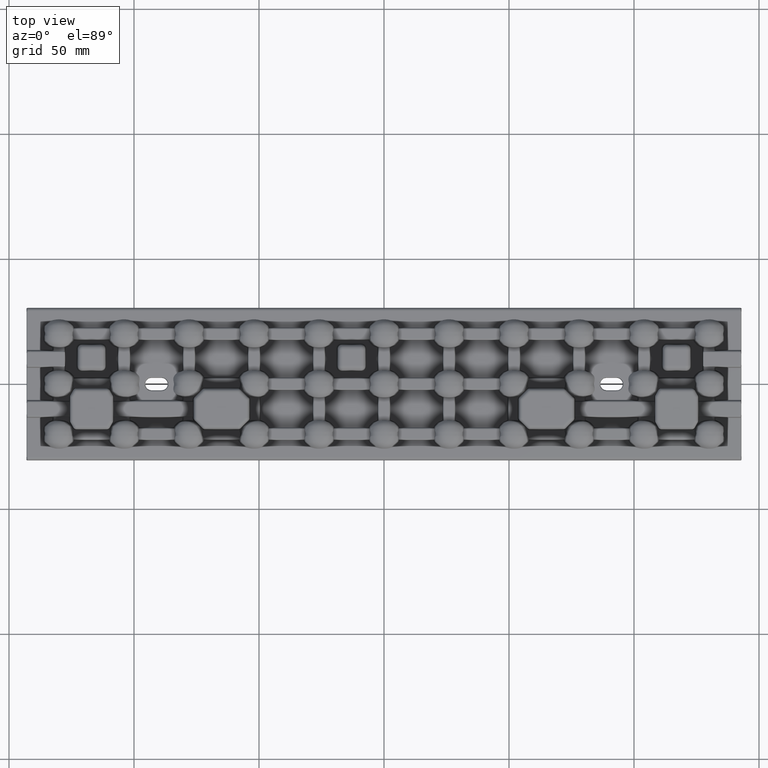
[diagram: clean part render]
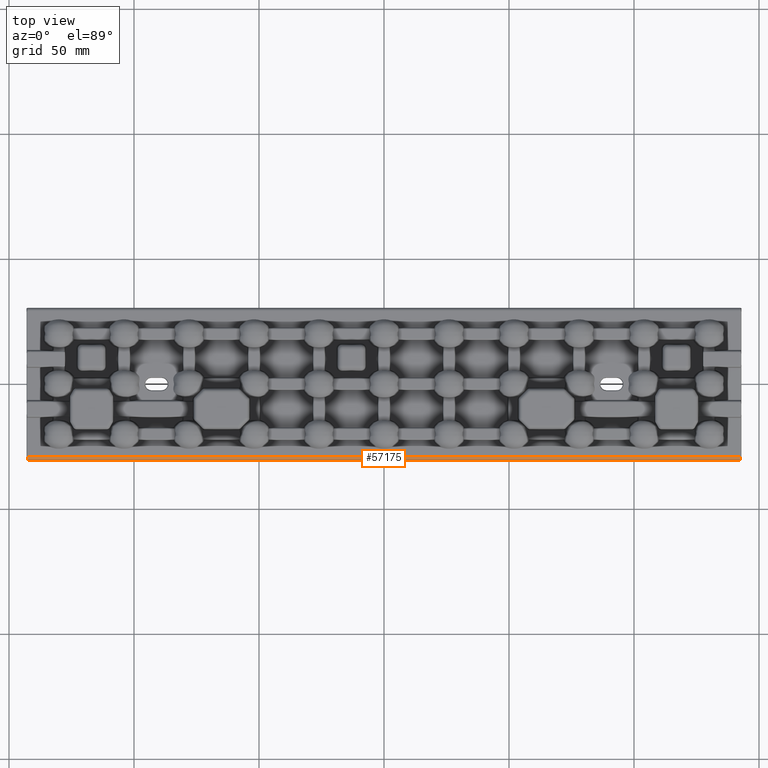
[diagram: same view with one face highlighted and labeled with its STEP entity id]
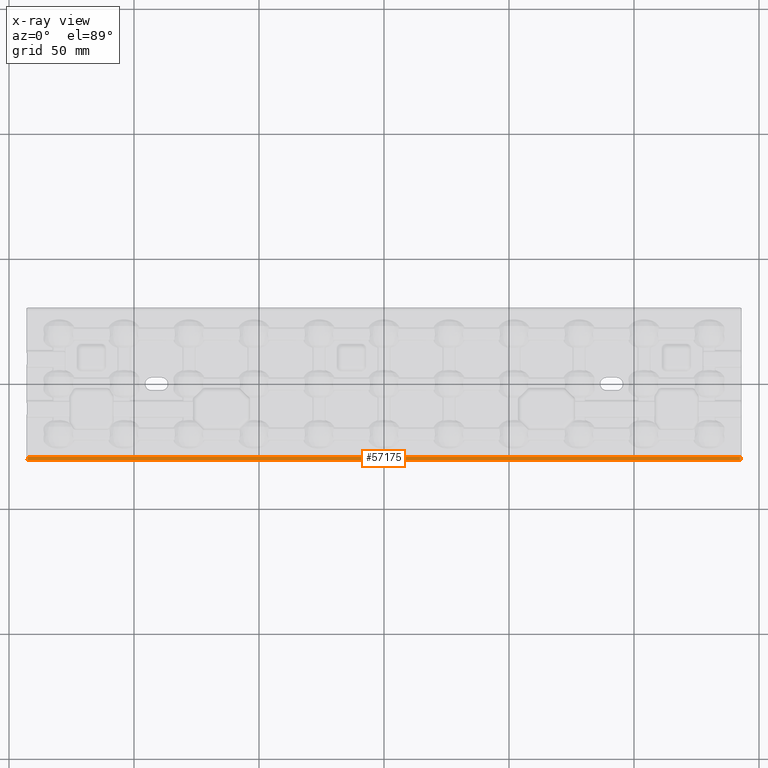
[diagram: x-ray of the same camera — body ghosted, the highlighted face saturated]
A machine part, top view. The second image highlights one B-rep face of the part: STEP entity #57175.
The next image is the same camera in x-ray: the body ghosted, the highlighted face saturated — about 0% of this face is hidden behind the body in this view.
In plain terms, the highlighted cylindrical surface (edge-blend (fillet) strip) has radius 1.25 mm, axis along (-1, 0, 0).
Its self-contained STEP definition (entity closure, byte-faithful):
#247 = CARTESIAN_POINT ( 'NONE',  ( 0.0000000000000000000, -29.17765049216839300, 2.000000000000000000 ) ) ;
#3083 = EDGE_CURVE ( 'NONE', #15239, #69285, #68704, .T. ) ;
#12654 = CARTESIAN_POINT ( 'NONE',  ( -142.4984859507544300, -29.17765049216839300, 2.000000000000000000 ) ) ;
#14475 = CARTESIAN_POINT ( 'NONE',  ( -142.5271326951346400, -30.42688902594225900, 0.7936243708781265400 ) ) ;
#14731 = CARTESIAN_POINT ( 'NONE',  ( -142.4984859507544300, -29.17765049216839300, 2.000000000000000000 ) ) ;
#15239 = VERTEX_POINT ( 'NONE', #12654 ) ;
#15262 = CARTESIAN_POINT ( 'NONE',  ( -142.4984859507544300, -29.88977599060007200, 2.000000000000000000 ) ) ;
#15605 = CARTESIAN_POINT ( 'NONE',  ( -142.5102327765253000, -30.40203620445798200, 1.505316061697149000 ) ) ;
#16471 =( BOUNDED_CURVE ( )  B_SPLINE_CURVE ( 3, ( #66979, #54297, #73108, #36955 ),
 .UNSPECIFIED., .F., .F. ) 
 B_SPLINE_CURVE_WITH_KNOTS ( ( 4, 4 ),
 ( 4.747295565424576800, 6.283185307179586200 ),
 .UNSPECIFIED. ) 
 CURVE ( )  GEOMETRIC_REPRESENTATION_ITEM ( )  RATIONAL_B_SPLINE_CURVE ( ( 1.000000000000000000, 0.8128932002257675000, 0.8128932002257675000, 1.000000000000000000 ) ) 
 REPRESENTATION_ITEM ( '' )  );
#16644 = FACE_OUTER_BOUND ( 'NONE', #35630, .T. ) ;
#18693 = ORIENTED_EDGE ( 'NONE', *, *, #50380, .T. ) ;
#25605 = CARTESIAN_POINT ( 'NONE',  ( 0.0000000000000000000, -29.17765049216839300, 0.7500000000000002200 ) ) ;
#30538 = VECTOR ( 'NONE', #41864, 1000.000000000000000 ) ;
#35630 = EDGE_LOOP ( 'NONE', ( #51542, #18693, #56258, #57235 ) ) ;
#36955 = CARTESIAN_POINT ( 'NONE',  ( 142.4984859507544300, -29.17765049216839300, 2.000000000000000000 ) ) ;
#37400 = DIRECTION ( 'NONE',  ( -1.000000000000000000, 0.0000000000000000000, 0.0000000000000000000 ) ) ;
#41864 = DIRECTION ( 'NONE',  ( -1.000000000000000000, 0.0000000000000000000, 0.0000000000000000000 ) ) ;
#42712 = CARTESIAN_POINT ( 'NONE',  ( 142.5271326951346400, -30.42688902594225900, 0.7936243708781265400 ) ) ;
#46585 = LINE ( 'NONE', #65560, #30538 ) ;
#48329 = DIRECTION ( 'NONE',  ( 1.000000000000000000, -0.0000000000000000000, 0.0000000000000000000 ) ) ;
#49535 = VERTEX_POINT ( 'NONE', #42712 ) ;
#50103 = CARTESIAN_POINT ( 'NONE',  ( -142.5271326951346400, -30.42688902594225900, 0.7936243708781265400 ) ) ;
#50380 = EDGE_CURVE ( 'NONE', #49535, #53332, #16471, .T. ) ;
#51381 = AXIS2_PLACEMENT_3D ( 'NONE', #25605, #37400, #73834 ) ;
#51542 = ORIENTED_EDGE ( 'NONE', *, *, #59225, .F. ) ;
#53332 = VERTEX_POINT ( 'NONE', #54210 ) ;
#54210 = CARTESIAN_POINT ( 'NONE',  ( 142.4984859507544300, -29.17765049216839300, 2.000000000000000000 ) ) ;
#54297 = CARTESIAN_POINT ( 'NONE',  ( 142.5102327765253000, -30.40203620445798200, 1.505316061697148400 ) ) ;
#56258 = ORIENTED_EDGE ( 'NONE', *, *, #61191, .F. ) ;
#57175 = ADVANCED_FACE ( 'NONE', ( #16644 ), #62666, .T. ) ;
#57235 = ORIENTED_EDGE ( 'NONE', *, *, #3083, .T. ) ;
#59225 = EDGE_CURVE ( 'NONE', #49535, #69285, #46585, .T. ) ;
#61191 = EDGE_CURVE ( 'NONE', #15239, #53332, #63296, .T. ) ;
#61387 = VECTOR ( 'NONE', #48329, 1000.000000000000000 ) ;
#62666 = CYLINDRICAL_SURFACE ( 'NONE', #51381, 1.249999999999999800 ) ;
#63296 = LINE ( 'NONE', #247, #61387 ) ;
#65560 = CARTESIAN_POINT ( 'NONE',  ( 0.0000000000000000000, -30.42688902594225900, 0.7936243708781265400 ) ) ;
#66979 = CARTESIAN_POINT ( 'NONE',  ( 142.5271326951346400, -30.42688902594225900, 0.7936243708781265400 ) ) ;
#68704 =( BOUNDED_CURVE ( )  B_SPLINE_CURVE ( 3, ( #14731, #15262, #15605, #14475 ),
 .UNSPECIFIED., .F., .F. ) 
 B_SPLINE_CURVE_WITH_KNOTS ( ( 4, 4 ),
 ( 3.141592653589793100, 4.677482395344802600 ),
 .UNSPECIFIED. ) 
 CURVE ( )  GEOMETRIC_REPRESENTATION_ITEM ( )  RATIONAL_B_SPLINE_CURVE ( ( 1.000000000000000000, 0.8128932002257675000, 0.8128932002257675000, 1.000000000000000000 ) ) 
 REPRESENTATION_ITEM ( '' )  );
#69285 = VERTEX_POINT ( 'NONE', #50103 ) ;
#73108 = CARTESIAN_POINT ( 'NONE',  ( 142.4984859507544300, -29.88977599060007200, 2.000000000000000000 ) ) ;
#73834 = DIRECTION ( 'NONE',  ( 0.0000000000000000000, 0.0000000000000000000, 1.000000000000000000 ) ) ;